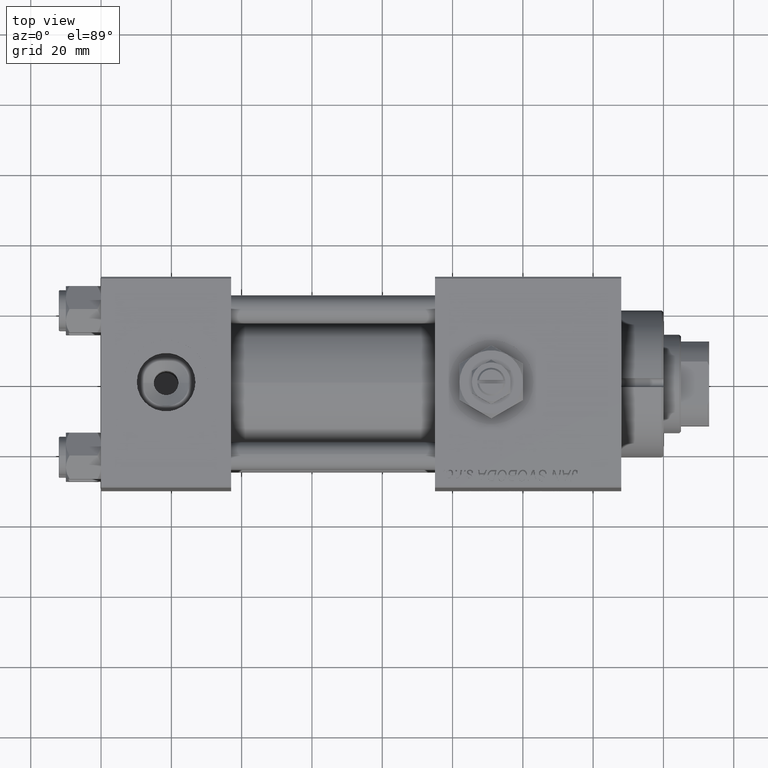
[diagram: clean part render]
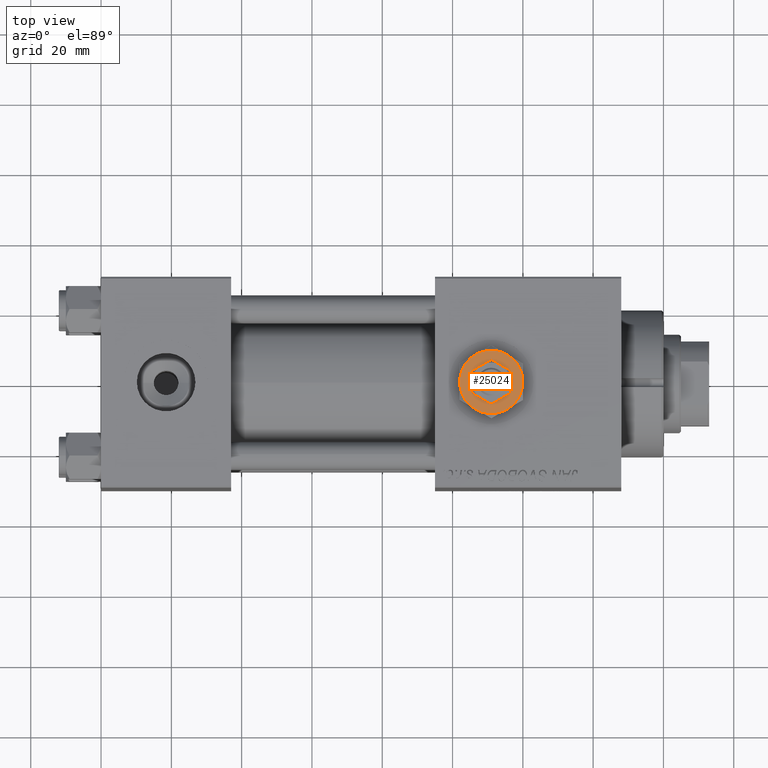
[diagram: same view with one face highlighted and labeled with its STEP entity id]
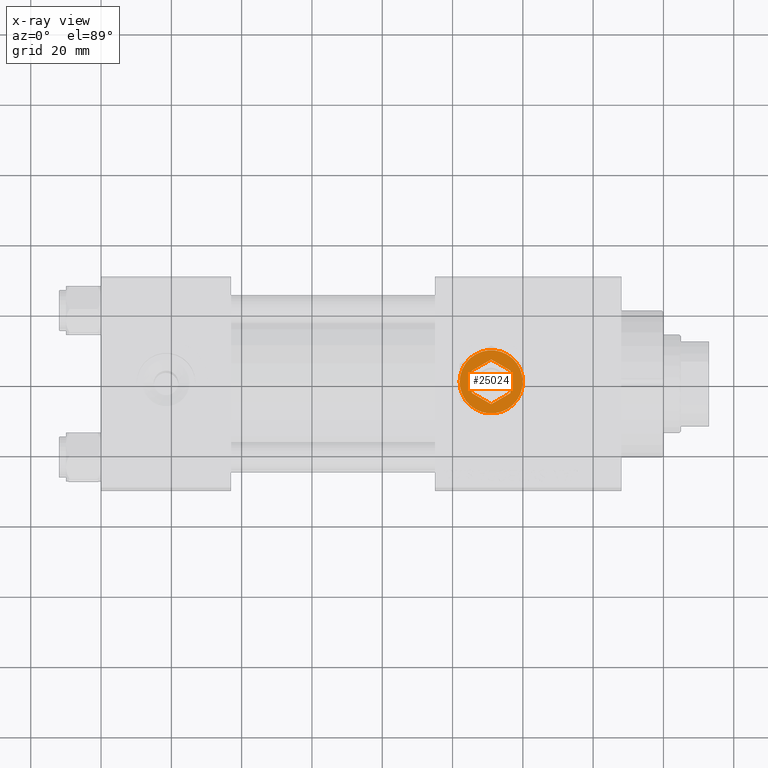
[diagram: x-ray of the same camera — body ghosted, the highlighted face saturated]
A machine part, top view. The second image highlights one B-rep face of the part: STEP entity #25024.
The next image is the same camera in x-ray: the body ghosted, the highlighted face saturated — about 0% of this face is hidden behind the body in this view.
In plain terms, the highlighted planar face has unit normal (0, 0, 1).
Its self-contained STEP definition (entity closure, byte-faithful):
#381 = ORIENTED_EDGE ( 'NONE', *, *, #9295, .T. ) ;
#1992 = VERTEX_POINT ( 'NONE', #48084 ) ;
#2158 = LINE ( 'NONE', #35078, #9221 ) ;
#2186 = ORIENTED_EDGE ( 'NONE', *, *, #42245, .T. ) ;
#3180 = VERTEX_POINT ( 'NONE', #36087 ) ;
#3746 = CARTESIAN_POINT ( 'NONE',  ( -5.500000000000000000, 3.175426480542941743, 4.299999999999999822 ) ) ;
#3763 = EDGE_CURVE ( 'NONE', #19142, #19970, #39657, .T. ) ;
#4172 = CARTESIAN_POINT ( 'NONE',  ( 4.499999999999997335, -7.794228634059948035, 4.299999999999999822 ) ) ;
#4493 = ORIENTED_EDGE ( 'NONE', *, *, #20255, .T. ) ;
#5068 = FACE_OUTER_BOUND ( 'NONE', #18800, .T. ) ;
#6039 = CIRCLE ( 'NONE', #32329, 9.000000000000000000 ) ;
#6346 = EDGE_CURVE ( 'NONE', #20688, #1992, #2158, .T. ) ;
#7048 = VERTEX_POINT ( 'NONE', #10516 ) ;
#7203 = ORIENTED_EDGE ( 'NONE', *, *, #15331, .T. ) ;
#7451 = LINE ( 'NONE', #35074, #46806 ) ;
#7663 = CARTESIAN_POINT ( 'NONE',  ( -4.499999999999998224, -7.794228634059947147, 4.299999999999999822 ) ) ;
#7765 = CARTESIAN_POINT ( 'NONE',  ( 0.000000000000000000, 0.000000000000000000, 4.299999999999999822 ) ) ;
#7955 = AXIS2_PLACEMENT_3D ( 'NONE', #9048, #37452, #36930 ) ;
#8982 = EDGE_CURVE ( 'NONE', #7048, #48124, #51752, .T. ) ;
#9048 = CARTESIAN_POINT ( 'NONE',  ( 0.000000000000000000, 0.000000000000000000, 4.299999999999999822 ) ) ;
#9156 = DIRECTION ( 'NONE',  ( 0.000000000000000000, 0.000000000000000000, 1.000000000000000000 ) ) ;
#9221 = VECTOR ( 'NONE', #15159, 1000.000000000000114 ) ;
#9245 = VECTOR ( 'NONE', #26919, 1000.000000000000000 ) ;
#9295 = EDGE_CURVE ( 'NONE', #27180, #38042, #26293, .T. ) ;
#9560 = AXIS2_PLACEMENT_3D ( 'NONE', #31757, #28041, #52205 ) ;
#9577 = PLANE ( 'NONE',  #7955 ) ;
#10516 = CARTESIAN_POINT ( 'NONE',  ( -1.343581385738006573E-15, -6.350852961085881709, 4.299999999999999822 ) ) ;
#11028 = VECTOR ( 'NONE', #31568, 1000.000000000000000 ) ;
#11055 = DIRECTION ( 'NONE',  ( 0.000000000000000000, 0.000000000000000000, 1.000000000000000000 ) ) ;
#11224 = DIRECTION ( 'NONE',  ( 1.000000000000000000, 0.000000000000000000, 0.000000000000000000 ) ) ;
#12307 = CARTESIAN_POINT ( 'NONE',  ( 0.000000000000000000, 0.000000000000000000, 4.299999999999999822 ) ) ;
#14261 = CARTESIAN_POINT ( 'NONE',  ( 0.000000000000000000, 0.000000000000000000, 4.299999999999999822 ) ) ;
#14469 = ORIENTED_EDGE ( 'NONE', *, *, #23966, .F. ) ;
#15159 = DIRECTION ( 'NONE',  ( -0.8660254037844385966, -0.4999999999999999445, 0.000000000000000000 ) ) ;
#15331 = EDGE_CURVE ( 'NONE', #27753, #27180, #6039, .T. ) ;
#16879 = CARTESIAN_POINT ( 'NONE',  ( 5.499999999999999112, 3.175426480542943075, 4.299999999999999822 ) ) ;
#17157 = ORIENTED_EDGE ( 'NONE', *, *, #43999, .F. ) ;
#18800 = EDGE_LOOP ( 'NONE', ( #38188, #4493, #39419, #2186, #7203, #381 ) ) ;
#19142 = VERTEX_POINT ( 'NONE', #51284 ) ;
#19970 = VERTEX_POINT ( 'NONE', #23466 ) ;
#20208 = DIRECTION ( 'NONE',  ( 0.000000000000000000, -1.000000000000000000, 0.000000000000000000 ) ) ;
#20255 = EDGE_CURVE ( 'NONE', #3180, #19142, #24030, .T. ) ;
#20688 = VERTEX_POINT ( 'NONE', #43922 ) ;
#23014 = CARTESIAN_POINT ( 'NONE',  ( 0.000000000000000000, 0.000000000000000000, 4.299999999999999822 ) ) ;
#23076 = CARTESIAN_POINT ( 'NONE',  ( -1.343581385738006573E-15, -6.350852961085881709, 4.299999999999999822 ) ) ;
#23466 = CARTESIAN_POINT ( 'NONE',  ( -4.500000000000000000, 7.794228634059947147, 4.299999999999999822 ) ) ;
#23966 = EDGE_CURVE ( 'NONE', #1992, #45496, #27666, .T. ) ;
#23991 = CARTESIAN_POINT ( 'NONE',  ( -9.000000000000000000, 0.000000000000000000, 4.299999999999999822 ) ) ;
#24030 = CIRCLE ( 'NONE', #48628, 9.000000000000000000 ) ;
#25024 = ADVANCED_FACE ( 'NONE', ( #5068, #49948 ), #9577, .T. ) ;
#26166 = ORIENTED_EDGE ( 'NONE', *, *, #33114, .F. ) ;
#26293 = CIRCLE ( 'NONE', #46637, 9.000000000000000000 ) ;
#26919 = DIRECTION ( 'NONE',  ( 0.8660254037844387076, -0.4999999999999998890, 0.000000000000000000 ) ) ;
#27168 = DIRECTION ( 'NONE',  ( 0.000000000000000000, 0.000000000000000000, 1.000000000000000000 ) ) ;
#27180 = VERTEX_POINT ( 'NONE', #7663 ) ;
#27666 = LINE ( 'NONE', #3746, #47905 ) ;
#27753 = VERTEX_POINT ( 'NONE', #23991 ) ;
#28041 = DIRECTION ( 'NONE',  ( 0.000000000000000000, 0.000000000000000000, 1.000000000000000000 ) ) ;
#28226 = LINE ( 'NONE', #48395, #38911 ) ;
#28410 = VERTEX_POINT ( 'NONE', #16879 ) ;
#29027 = DIRECTION ( 'NONE',  ( 0.000000000000000000, 0.000000000000000000, 1.000000000000000000 ) ) ;
#29403 = CARTESIAN_POINT ( 'NONE',  ( -5.500000000000000000, -3.175426480542942187, 4.299999999999999822 ) ) ;
#31568 = DIRECTION ( 'NONE',  ( 0.8660254037844388186, 0.4999999999999997224, 0.000000000000000000 ) ) ;
#31757 = CARTESIAN_POINT ( 'NONE',  ( 0.000000000000000000, 0.000000000000000000, 4.299999999999999822 ) ) ;
#31961 = DIRECTION ( 'NONE',  ( 1.000000000000000000, 0.000000000000000000, 0.000000000000000000 ) ) ;
#32329 = AXIS2_PLACEMENT_3D ( 'NONE', #7765, #27168, #11224 ) ;
#32435 = CIRCLE ( 'NONE', #9560, 9.000000000000000000 ) ;
#33114 = EDGE_CURVE ( 'NONE', #45496, #7048, #39111, .T. ) ;
#33237 = EDGE_CURVE ( 'NONE', #28410, #20688, #28226, .T. ) ;
#33351 = CIRCLE ( 'NONE', #40976, 9.000000000000000000 ) ;
#35074 = CARTESIAN_POINT ( 'NONE',  ( 5.500000000000000888, -3.175426480542940855, 4.299999999999999822 ) ) ;
#35078 = CARTESIAN_POINT ( 'NONE',  ( 0.000000000000000000, 6.350852961085883486, 4.299999999999999822 ) ) ;
#35148 = ORIENTED_EDGE ( 'NONE', *, *, #8982, .F. ) ;
#35786 = ORIENTED_EDGE ( 'NONE', *, *, #33237, .F. ) ;
#36087 = CARTESIAN_POINT ( 'NONE',  ( 8.999999999999998224, 0.000000000000000000, 4.299999999999999822 ) ) ;
#36429 = EDGE_LOOP ( 'NONE', ( #45647, #35786, #17157, #35148, #26166, #14469 ) ) ;
#36930 = DIRECTION ( 'NONE',  ( 1.000000000000000000, 0.000000000000000000, -0.000000000000000000 ) ) ;
#37299 = DIRECTION ( 'NONE',  ( 1.000000000000000000, 0.000000000000000000, 0.000000000000000000 ) ) ;
#37452 = DIRECTION ( 'NONE',  ( 0.000000000000000000, 0.000000000000000000, 1.000000000000000000 ) ) ;
#38042 = VERTEX_POINT ( 'NONE', #4172 ) ;
#38188 = ORIENTED_EDGE ( 'NONE', *, *, #42157, .T. ) ;
#38911 = VECTOR ( 'NONE', #48659, 1000.000000000000000 ) ;
#38931 = DIRECTION ( 'NONE',  ( 0.000000000000000000, 0.000000000000000000, 1.000000000000000000 ) ) ;
#39111 = LINE ( 'NONE', #43645, #9245 ) ;
#39419 = ORIENTED_EDGE ( 'NONE', *, *, #3763, .T. ) ;
#39657 = CIRCLE ( 'NONE', #47278, 9.000000000000000000 ) ;
#40976 = AXIS2_PLACEMENT_3D ( 'NONE', #49001, #9156, #37299 ) ;
#42157 = EDGE_CURVE ( 'NONE', #38042, #3180, #32435, .T. ) ;
#42245 = EDGE_CURVE ( 'NONE', #19970, #27753, #33351, .T. ) ;
#42420 = DIRECTION ( 'NONE',  ( 1.000000000000000000, 0.000000000000000000, 0.000000000000000000 ) ) ;
#42944 = DIRECTION ( 'NONE',  ( 1.000000000000000000, 0.000000000000000000, 0.000000000000000000 ) ) ;
#43645 = CARTESIAN_POINT ( 'NONE',  ( -5.500000000000000000, -3.175426480542942187, 4.299999999999999822 ) ) ;
#43922 = CARTESIAN_POINT ( 'NONE',  ( 0.000000000000000000, 6.350852961085883486, 4.299999999999999822 ) ) ;
#43999 = EDGE_CURVE ( 'NONE', #48124, #28410, #7451, .T. ) ;
#45496 = VERTEX_POINT ( 'NONE', #29403 ) ;
#45647 = ORIENTED_EDGE ( 'NONE', *, *, #6346, .F. ) ;
#46637 = AXIS2_PLACEMENT_3D ( 'NONE', #14261, #38931, #42944 ) ;
#46806 = VECTOR ( 'NONE', #51791, 1000.000000000000000 ) ;
#47278 = AXIS2_PLACEMENT_3D ( 'NONE', #12307, #29027, #31961 ) ;
#47905 = VECTOR ( 'NONE', #20208, 1000.000000000000000 ) ;
#48084 = CARTESIAN_POINT ( 'NONE',  ( -5.500000000000000000, 3.175426480542941743, 4.299999999999999822 ) ) ;
#48124 = VERTEX_POINT ( 'NONE', #48942 ) ;
#48395 = CARTESIAN_POINT ( 'NONE',  ( 5.499999999999999112, 3.175426480542943075, 4.299999999999999822 ) ) ;
#48628 = AXIS2_PLACEMENT_3D ( 'NONE', #23014, #11055, #42420 ) ;
#48659 = DIRECTION ( 'NONE',  ( -0.8660254037844387076, 0.4999999999999999445, 0.000000000000000000 ) ) ;
#48942 = CARTESIAN_POINT ( 'NONE',  ( 5.500000000000000888, -3.175426480542940855, 4.299999999999999822 ) ) ;
#49001 = CARTESIAN_POINT ( 'NONE',  ( 0.000000000000000000, 0.000000000000000000, 4.299999999999999822 ) ) ;
#49948 = FACE_BOUND ( 'NONE', #36429, .T. ) ;
#51284 = CARTESIAN_POINT ( 'NONE',  ( 4.500000000000000000, 7.794228634059947147, 4.299999999999999822 ) ) ;
#51752 = LINE ( 'NONE', #23076, #11028 ) ;
#51791 = DIRECTION ( 'NONE',  ( -2.731481088613017227E-16, 1.000000000000000000, 0.000000000000000000 ) ) ;
#52205 = DIRECTION ( 'NONE',  ( 1.000000000000000000, 0.000000000000000000, 0.000000000000000000 ) ) ;